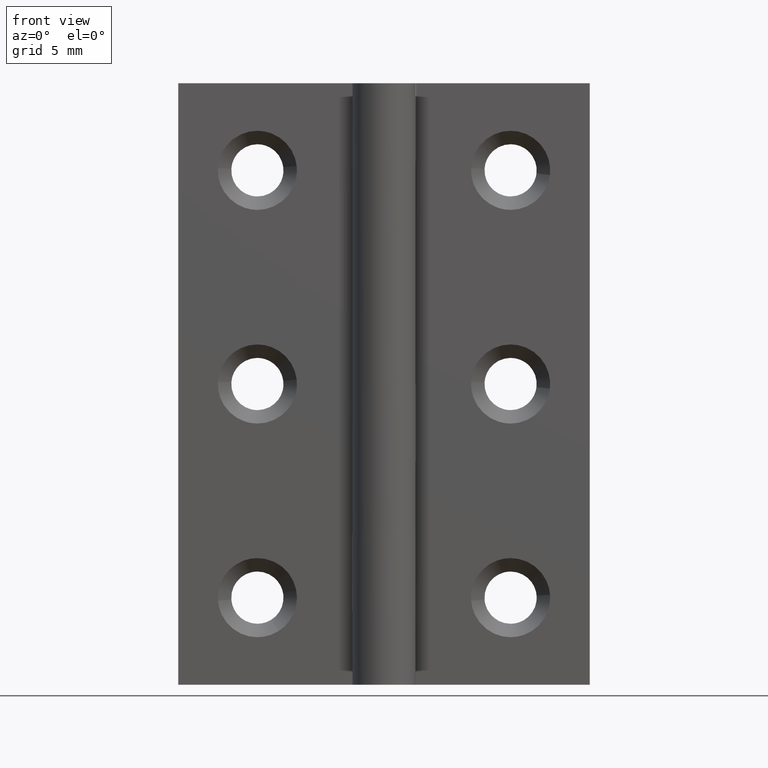
[diagram: clean part render]
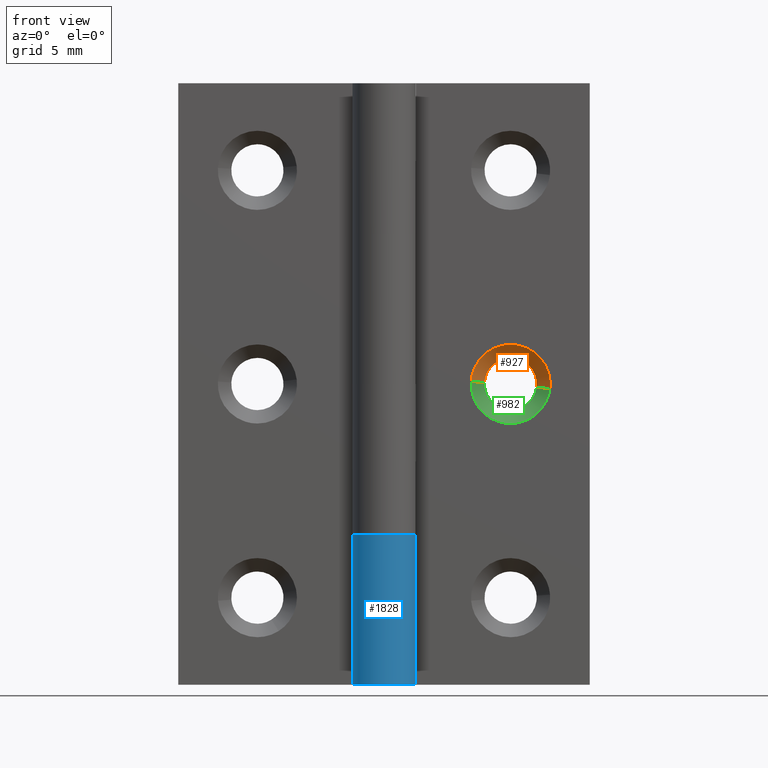
[diagram: same view with three faces highlighted in distinct colors, each labeled with its STEP entity id]
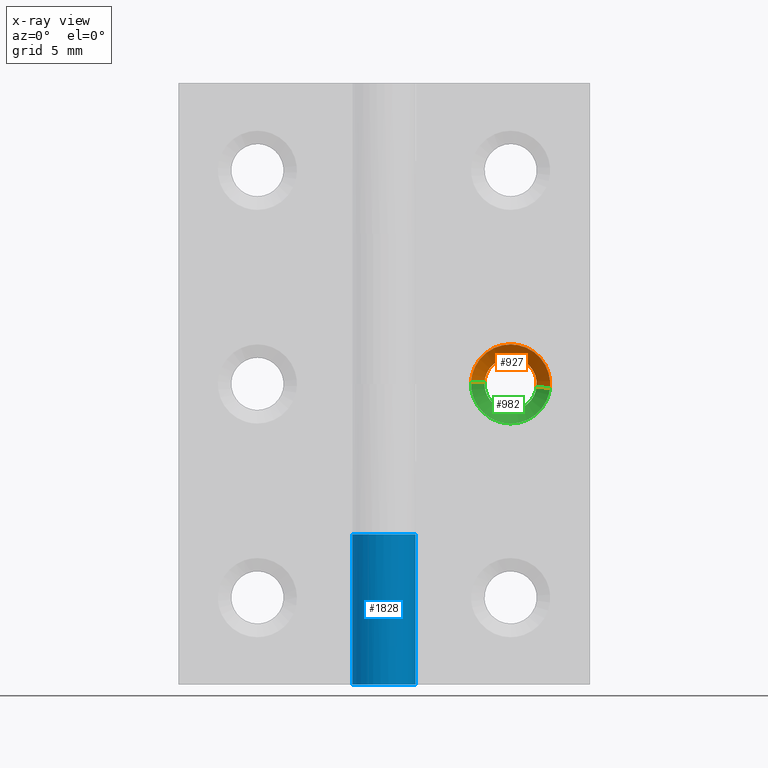
[diagram: x-ray of the same camera — body ghosted, the three highlighted faces saturated]
A machine part, front view with three faces highlighted in distinct colors.
The next image is the same camera in x-ray (body ghosted, the three faces saturated) — at least one of them is partly hidden behind the body in this view.
Their STEP definitions:

[orange] entity #927 — the highlighted face is a freeform B-spline surface patch.
#661=CARTESIAN_POINT('',(9.638465718502589,1.849999999959386,18.805243512493622));
#662=VERTEX_POINT('',#661);
#663=CARTESIAN_POINT('',(8.887453809190404,1.850000000000000,20.391016080623601));
#664=VERTEX_POINT('',#663);
#665=CARTESIAN_POINT('',(9.638465718502589,1.849999999959385,18.805243512493618));
#666=CARTESIAN_POINT('',(9.650000000000000,1.850000000000000,18.902280202253049));
#667=CARTESIAN_POINT('',(9.650000000000000,1.850000000000000,19.0));
#668=CARTESIAN_POINT('',(9.650000000000000,1.850000000000000,19.904519532417840));
#669=CARTESIAN_POINT('',(8.887453809190404,1.850000000000000,20.391016080623597));
#677=(BOUNDED_CURVE()B_SPLINE_CURVE(2,(#665,#666,#667,#668,#669),.UNSPECIFIED.,.F.,.U.)B_SPLINE_CURVE_WITH_KNOTS((3,2,3),(0.229562473450056,0.250000000000000,0.407950112626655),.UNSPECIFIED.)CURVE()GEOMETRIC_REPRESENTATION_ITEM()RATIONAL_B_SPLINE_CURVE((0.956026754059329,0.976055948256805,1.0,0.814949932403327,0.863729296954371))REPRESENTATION_ITEM(''));
#678=EDGE_CURVE('',#662,#664,#677,.T.);
#721=CARTESIAN_POINT('',(6.355086399340840,1.850000000000000,19.129457507957309));
#722=VERTEX_POINT('',#721);
#728=CARTESIAN_POINT('',(6.353077582582209,1.849999999959427,19.100730090542140));
#729=VERTEX_POINT('',#728);
#730=CARTESIAN_POINT('',(6.355086399340840,1.850000000000000,19.129457507957305));
#731=CARTESIAN_POINT('',(6.353956640808464,1.850000000000001,19.115102564743935));
#732=CARTESIAN_POINT('',(6.353077582582209,1.849999999959427,19.100730090542150));
#740=(BOUNDED_CURVE()B_SPLINE_CURVE(2,(#730,#731,#732),.UNSPECIFIED.,.F.,.U.)B_SPLINE_CURVE_WITH_KNOTS((3,3),(0.736331300631441,0.739332962177608),.UNSPECIFIED.)CURVE()GEOMETRIC_REPRESENTATION_ITEM()RATIONAL_B_SPLINE_CURVE((0.969723356169048,0.972855475496772,0.976072041535265))REPRESENTATION_ITEM(''));
#741=EDGE_CURVE('',#722,#729,#740,.T.);
#794=CARTESIAN_POINT('',(8.0,1.850000000000000,20.649999999999999));
#795=VERTEX_POINT('',#794);
#796=CARTESIAN_POINT('',(8.887453809190404,1.850000000000000,20.391016080623597));
#797=CARTESIAN_POINT('',(8.481516291381151,1.850000000000000,20.649999999999999));
#798=CARTESIAN_POINT('',(8.0,1.850000000000000,20.649999999999999));
#806=(BOUNDED_CURVE()B_SPLINE_CURVE(2,(#796,#797,#798),.UNSPECIFIED.,.F.,.U.)B_SPLINE_CURVE_WITH_KNOTS((3,3),(0.407950112626655,0.500000000000000),.UNSPECIFIED.)CURVE()GEOMETRIC_REPRESENTATION_ITEM()RATIONAL_B_SPLINE_CURVE((0.863729296954371,0.892156848783221,1.0))REPRESENTATION_ITEM(''));
#807=EDGE_CURVE('',#664,#795,#806,.T.);
#809=CARTESIAN_POINT('',(8.0,1.850000000000000,20.649999999999999));
#810=CARTESIAN_POINT('',(6.474755688775796,1.850000000000000,20.649999999999995));
#811=CARTESIAN_POINT('',(6.355086399340840,1.850000000000001,19.129457507957309));
#819=(BOUNDED_CURVE()B_SPLINE_CURVE(2,(#809,#810,#811),.UNSPECIFIED.,.F.,.U.)B_SPLINE_CURVE_WITH_KNOTS((3,3),(0.500000000000000,0.736331300631440),.UNSPECIFIED.)CURVE()GEOMETRIC_REPRESENTATION_ITEM()RATIONAL_B_SPLINE_CURVE((1.0,0.723120658606751,0.969723356169047))REPRESENTATION_ITEM(''));
#820=EDGE_CURVE('',#795,#722,#819,.T.);
#855=CARTESIAN_POINT('',(9.617364266064820,1.871250000000000,18.807751740302802));
#856=CARTESIAN_POINT('',(9.622866328661914,1.871250000000000,18.854040010730895));
#857=CARTESIAN_POINT('',(9.625712052929615,1.871250000000000,18.900567191232600));
#858=CARTESIAN_POINT('',(9.725144861697013,1.871250000000000,20.526279244162222));
#859=CARTESIAN_POINT('',(8.099432808767398,1.871250000000000,20.625712052929622));
#860=CARTESIAN_POINT('',(6.473720755837784,1.871250000000000,20.725144861697011));
#861=CARTESIAN_POINT('',(6.374287947070386,1.871250000000000,19.099432808767400));
#862=CARTESIAN_POINT('',(10.504152804655273,0.978218750000000,18.702343480184481));
#863=CARTESIAN_POINT('',(10.512671606370505,0.978218750000000,18.774011257596911));
#864=CARTESIAN_POINT('',(10.517077619632790,0.978218750000000,18.846048937661109));
#865=CARTESIAN_POINT('',(10.671028681971677,0.978218750000000,21.363126557293899));
#866=CARTESIAN_POINT('',(8.153951062338885,0.978218750000000,21.517077619632790));
#867=CARTESIAN_POINT('',(5.636873442706095,0.978218750000000,21.671028681971674));
#868=CARTESIAN_POINT('',(5.482922380367208,0.978218750000000,19.153951062338891));
#876=(BOUNDED_SURFACE()B_SPLINE_SURFACE(2,1,((#855,#862),(#856,#863),(#857,#864),(#858,#865),(#859,#866),(#860,#867),(#861,#868)),.UNSPECIFIED.,.F.,.F.,.U.)B_SPLINE_SURFACE_WITH_KNOTS((3,2,2,3),(2,2),(0.0,0.167128959214109,4.345352939566817,8.523576919919524),(0.0,1.0),.UNSPECIFIED.)GEOMETRIC_REPRESENTATION_ITEM()RATIONAL_B_SPLINE_SURFACE(((0.977505800795127,0.977505800795127),(0.988284271247462,0.988284271247462),(1.0,1.0),(0.707106781186548,0.707106781186548),(1.0,1.0),(0.707106781186548,0.707106781186548),(1.0,1.0)))REPRESENTATION_ITEM('')SURFACE());
#877=ORIENTED_EDGE('',*,*,#678,.F.);
#878=CARTESIAN_POINT('',(10.482523815910669,0.999999999978796,18.704914413191101));
#879=VERTEX_POINT('',#878);
#880=CARTESIAN_POINT('',(9.638465718502589,1.849999999959386,18.805243512493622));
#881=CARTESIAN_POINT('',(10.482523815910669,0.999999999978796,18.704914413191101));
#882=QUASI_UNIFORM_CURVE('',1,(#880,#881),.UNSPECIFIED.,.F.,.U.);
#883=EDGE_CURVE('',#662,#879,#882,.T.);
#884=ORIENTED_EDGE('',*,*,#883,.T.);
#885=CARTESIAN_POINT('',(8.0,1.0,21.500000000000000));
#886=VERTEX_POINT('',#885);
#887=CARTESIAN_POINT('',(10.482523815910671,0.999999999978796,18.704914413191098));
#888=CARTESIAN_POINT('',(10.500000000000002,1.0,18.851939700703987));
#889=CARTESIAN_POINT('',(10.500000000000000,1.0,19.0));
#890=CARTESIAN_POINT('',(10.500000000000002,1.0,21.499999999999996));
#891=CARTESIAN_POINT('',(8.0,1.0,21.500000000000000));
#899=(BOUNDED_CURVE()B_SPLINE_CURVE(2,(#887,#888,#889,#890,#891),.UNSPECIFIED.,.F.,.U.)B_SPLINE_CURVE_WITH_KNOTS((3,2,3),(0.229562473493247,0.250000000000000,0.500000000000000),.UNSPECIFIED.)CURVE()GEOMETRIC_REPRESENTATION_ITEM()RATIONAL_B_SPLINE_CURVE((0.956026754143986,0.976055948307407,1.0,0.707106781186548,1.0))REPRESENTATION_ITEM(''));
#900=EDGE_CURVE('',#879,#886,#899,.T.);
#901=ORIENTED_EDGE('',*,*,#900,.T.);
#902=CARTESIAN_POINT('',(5.504663003944892,0.999999999999174,19.152621348843471));
#903=VERTEX_POINT('',#902);
#904=CARTESIAN_POINT('',(8.0,1.0,21.500000000000000));
#905=CARTESIAN_POINT('',(5.648234832747604,1.0,21.500000000000004));
#906=CARTESIAN_POINT('',(5.504663003944892,0.999999999999174,19.152621348843468));
#914=(BOUNDED_CURVE()B_SPLINE_CURVE(2,(#904,#905,#906),.UNSPECIFIED.,.F.,.U.)B_SPLINE_CURVE_WITH_KNOTS((3,3),(0.500000000000000,0.739332962241101),.UNSPECIFIED.)CURVE()GEOMETRIC_REPRESENTATION_ITEM()RATIONAL_B_SPLINE_CURVE((1.0,0.719603993284182,0.976072041671343))REPRESENTATION_ITEM(''));
#915=EDGE_CURVE('',#886,#903,#914,.T.);
#916=ORIENTED_EDGE('',*,*,#915,.T.);
#917=CARTESIAN_POINT('',(6.353077582582209,1.849999999959427,19.100730090542140));
#918=CARTESIAN_POINT('',(5.504663003944892,0.999999999999174,19.152621348843471));
#919=QUASI_UNIFORM_CURVE('',1,(#917,#918),.UNSPECIFIED.,.F.,.U.);
#920=EDGE_CURVE('',#729,#903,#919,.T.);
#921=ORIENTED_EDGE('',*,*,#920,.F.);
#922=ORIENTED_EDGE('',*,*,#741,.F.);
#923=ORIENTED_EDGE('',*,*,#820,.F.);
#924=ORIENTED_EDGE('',*,*,#807,.F.);
#925=EDGE_LOOP('',(#877,#884,#901,#916,#921,#922,#923,#924));
#926=FACE_OUTER_BOUND('',#925,.T.);
#927=ADVANCED_FACE('',(#926),#876,.F.);

[blue] entity #1828 — the highlighted face is a freeform B-spline surface patch.
#1513=CARTESIAN_POINT('',(0.0,2.0,9.499999999999801));
#1514=VERTEX_POINT('',#1513);
#1520=CARTESIAN_POINT('',(1.759971590679805,0.950000000000000,9.499999999999840));
#1521=VERTEX_POINT('',#1520);
#1522=CARTESIAN_POINT('',(0.0,2.0,9.499999999999801));
#1523=CARTESIAN_POINT('',(-1.523311426391113,2.000000000000000,9.499999999999840));
#1524=CARTESIAN_POINT('',(-1.928096575312494,0.531454227820452,9.499999999999840));
#1525=CARTESIAN_POINT('',(-2.332881724233875,-0.937091544359096,9.499999999999840));
#1526=CARTESIAN_POINT('',(-1.024695076595960,-1.717556403731767,9.499999999999840));
#1527=CARTESIAN_POINT('',(0.283491571041954,-2.498021263104437,9.499999999999840));
#1528=CARTESIAN_POINT('',(1.383518044628768,-1.444256840103792,9.499999999999840));
#1529=CARTESIAN_POINT('',(2.483544518215583,-0.390492417103146,9.499999999999840));
#1530=CARTESIAN_POINT('',(1.759971590679805,0.949999999999999,9.499999999999840));
#1538=(BOUNDED_CURVE()B_SPLINE_CURVE(2,(#1522,#1523,#1524,#1525,#1526,#1527,#1528,#1529,#1530),.UNSPECIFIED.,.F.,.U.)B_SPLINE_CURVE_WITH_KNOTS((3,2,2,2,3),(0.0,0.250000000000000,0.500000000000000,0.750000000000000,1.0),.UNSPECIFIED.)CURVE()GEOMETRIC_REPRESENTATION_ITEM()RATIONAL_B_SPLINE_CURVE((1.0,0.795527219493534,1.0,0.795527219493534,1.0,0.795527219493534,1.0,0.795527219493534,1.0))REPRESENTATION_ITEM(''));
#1539=EDGE_CURVE('',#1514,#1521,#1538,.T.);
#1653=CARTESIAN_POINT('',(1.759971590679805,0.950000000000000,0.0));
#1654=VERTEX_POINT('',#1653);
#1660=CARTESIAN_POINT('',(0.0,2.0,0.0));
#1661=VERTEX_POINT('',#1660);
#1662=CARTESIAN_POINT('',(1.759971590679804,0.950000000000000,0.0));
#1663=CARTESIAN_POINT('',(2.483544518215584,-0.390492417103144,0.0));
#1664=CARTESIAN_POINT('',(1.383518044628769,-1.444256840103792,0.0));
#1665=CARTESIAN_POINT('',(0.283491571041955,-2.498021263104437,0.0));
#1666=CARTESIAN_POINT('',(-1.024695076595959,-1.717556403731767,0.0));
#1667=CARTESIAN_POINT('',(-2.332881724233873,-0.937091544359097,0.0));
#1668=CARTESIAN_POINT('',(-1.928096575312494,0.531454227820451,0.0));
#1669=CARTESIAN_POINT('',(-1.523311426391115,2.000000000000000,0.0));
#1670=CARTESIAN_POINT('',(0.0,2.0,0.0));
#1678=(BOUNDED_CURVE()B_SPLINE_CURVE(2,(#1662,#1663,#1664,#1665,#1666,#1667,#1668,#1669,#1670),.UNSPECIFIED.,.F.,.U.)B_SPLINE_CURVE_WITH_KNOTS((3,2,2,2,3),(0.0,0.250000000000000,0.500000000000000,0.750000000000000,1.0),.UNSPECIFIED.)CURVE()GEOMETRIC_REPRESENTATION_ITEM()RATIONAL_B_SPLINE_CURVE((1.0,0.795527219493534,1.0,0.795527219493534,1.0,0.795527219493534,1.0,0.795527219493534,1.0))REPRESENTATION_ITEM(''));
#1679=EDGE_CURVE('',#1654,#1661,#1678,.T.);
#1754=CARTESIAN_POINT('',(1.759971590679805,0.950000000000000,0.0));
#1755=CARTESIAN_POINT('',(1.759971590679805,0.950000000000000,9.499999999999840));
#1756=QUASI_UNIFORM_CURVE('',1,(#1754,#1755),.UNSPECIFIED.,.F.,.U.);
#1757=EDGE_CURVE('',#1654,#1521,#1756,.T.);
#1796=CARTESIAN_POINT('',(1.723258320883051,1.015076725921408,-0.237499999999996));
#1797=CARTESIAN_POINT('',(1.723258320883051,1.015076725921408,9.743437499999837));
#1798=CARTESIAN_POINT('',(2.969344769301742,-1.100358281051034,-0.237499999999997));
#1799=CARTESIAN_POINT('',(2.969344769301742,-1.100358281051034,9.743437499999837));
#1800=CARTESIAN_POINT('',(0.645632757753657,-1.892923226682848,-0.237499999999996));
#1801=CARTESIAN_POINT('',(0.645632757753657,-1.892923226682848,9.743437499999837));
#1802=CARTESIAN_POINT('',(-1.678079253794428,-2.685488172314661,-0.237499999999997));
#1803=CARTESIAN_POINT('',(-1.678079253794428,-2.685488172314661,9.743437499999837));
#1804=CARTESIAN_POINT('',(-1.984374898665018,-0.249512046899941,-0.237499999999996));
#1805=CARTESIAN_POINT('',(-1.984374898665018,-0.249512046899941,9.743437499999837));
#1806=CARTESIAN_POINT('',(-2.290670543535608,2.186464078514781,-0.237499999999997));
#1807=CARTESIAN_POINT('',(-2.290670543535608,2.186464078514781,9.743437499999837));
#1808=CARTESIAN_POINT('',(0.156918191455691,1.993834667466256,-0.237499999999996));
#1809=CARTESIAN_POINT('',(0.156918191455691,1.993834667466256,9.743437499999837));
#1817=(BOUNDED_SURFACE()B_SPLINE_SURFACE(1,2,((#1796,#1798,#1800,#1802,#1804,#1806,#1808),(#1797,#1799,#1801,#1803,#1805,#1807,#1809)),.UNSPECIFIED.,.F.,.F.,.U.)B_SPLINE_SURFACE_WITH_KNOTS((2,2),(3,2,2,3),(0.0,9.980937499999834),(0.0,3.801531476131832,7.603062952263665,11.404594428395500),.UNSPECIFIED.)GEOMETRIC_REPRESENTATION_ITEM()RATIONAL_B_SPLINE_SURFACE(((1.0,0.631578351302498,1.0,0.631578351302498,1.0,0.631578351302498,1.0),(1.0,0.631578351302498,1.0,0.631578351302498,1.0,0.631578351302498,1.0)))REPRESENTATION_ITEM('')SURFACE());
#1818=ORIENTED_EDGE('',*,*,#1539,.F.);
#1819=CARTESIAN_POINT('',(0.0,2.0,0.0));
#1820=CARTESIAN_POINT('',(0.0,2.0,9.499999999999801));
#1821=QUASI_UNIFORM_CURVE('',1,(#1819,#1820),.UNSPECIFIED.,.F.,.U.);
#1822=EDGE_CURVE('',#1661,#1514,#1821,.T.);
#1823=ORIENTED_EDGE('',*,*,#1822,.F.);
#1824=ORIENTED_EDGE('',*,*,#1679,.F.);
#1825=ORIENTED_EDGE('',*,*,#1757,.T.);
#1826=EDGE_LOOP('',(#1818,#1823,#1824,#1825));
#1827=FACE_OUTER_BOUND('',#1826,.T.);
#1828=ADVANCED_FACE('',(#1827),#1817,.T.);

[green] entity #982 — the highlighted face is a freeform B-spline surface patch.
#661=CARTESIAN_POINT('',(9.638465718502589,1.849999999959386,18.805243512493622));
#662=VERTEX_POINT('',#661);
#728=CARTESIAN_POINT('',(6.353077582582209,1.849999999959427,19.100730090542140));
#729=VERTEX_POINT('',#728);
#743=CARTESIAN_POINT('',(8.0,1.850000000000000,17.350000000000001));
#744=VERTEX_POINT('',#743);
#745=CARTESIAN_POINT('',(6.353077582582209,1.849999999959427,19.100730090542147));
#746=CARTESIAN_POINT('',(6.350000000000000,1.850000000000001,19.050412059750688));
#747=CARTESIAN_POINT('',(6.350000000000000,1.850000000000000,19.0));
#748=CARTESIAN_POINT('',(6.350000000000000,1.850000000000000,17.350000000000001));
#749=CARTESIAN_POINT('',(8.0,1.850000000000000,17.350000000000001));
#757=(BOUNDED_CURVE()B_SPLINE_CURVE(2,(#745,#746,#747,#748,#749),.UNSPECIFIED.,.F.,.U.)B_SPLINE_CURVE_WITH_KNOTS((3,2,3),(0.739332962177609,0.750000000000000,1.0),.UNSPECIFIED.)CURVE()GEOMETRIC_REPRESENTATION_ITEM()RATIONAL_B_SPLINE_CURVE((0.976072041535267,0.987502787827980,1.0,0.707106781186548,1.0))REPRESENTATION_ITEM(''));
#758=EDGE_CURVE('',#729,#744,#757,.T.);
#760=CARTESIAN_POINT('',(8.0,1.850000000000000,17.350000000000001));
#761=CARTESIAN_POINT('',(9.465487967247011,1.850000000000000,17.350000000000009));
#762=CARTESIAN_POINT('',(9.638465718502587,1.849999999959386,18.805243512493629));
#770=(BOUNDED_CURVE()B_SPLINE_CURVE(2,(#760,#761,#762),.UNSPECIFIED.,.F.,.U.)B_SPLINE_CURVE_WITH_KNOTS((3,3),(0.0,0.229562473450056),.UNSPECIFIED.)CURVE()GEOMETRIC_REPRESENTATION_ITEM()RATIONAL_B_SPLINE_CURVE((1.0,0.731050832929742,0.956026754059329))REPRESENTATION_ITEM(''));
#771=EDGE_CURVE('',#744,#662,#770,.T.);
#878=CARTESIAN_POINT('',(10.482523815910669,0.999999999978796,18.704914413191101));
#879=VERTEX_POINT('',#878);
#880=CARTESIAN_POINT('',(9.638465718502589,1.849999999959386,18.805243512493622));
#881=CARTESIAN_POINT('',(10.482523815910669,0.999999999978796,18.704914413191101));
#882=QUASI_UNIFORM_CURVE('',1,(#880,#881),.UNSPECIFIED.,.F.,.U.);
#883=EDGE_CURVE('',#662,#879,#882,.T.);
#902=CARTESIAN_POINT('',(5.504663003944892,0.999999999999174,19.152621348843471));
#903=VERTEX_POINT('',#902);
#917=CARTESIAN_POINT('',(6.353077582582209,1.849999999959427,19.100730090542140));
#918=CARTESIAN_POINT('',(5.504663003944892,0.999999999999174,19.152621348843471));
#919=QUASI_UNIFORM_CURVE('',1,(#917,#918),.UNSPECIFIED.,.F.,.U.);
#920=EDGE_CURVE('',#729,#903,#919,.T.);
#928=CARTESIAN_POINT('',(6.374287947070386,1.871250000000000,19.099432808767400));
#929=CARTESIAN_POINT('',(6.274855138302987,1.871250000000000,17.473720755837782));
#930=CARTESIAN_POINT('',(7.900567191232602,1.871250000000000,17.374287947070389));
#931=CARTESIAN_POINT('',(9.435813960704836,1.871250000000000,17.280388232071896));
#932=CARTESIAN_POINT('',(9.617364266064820,1.871250000000000,18.807751740302802));
#933=CARTESIAN_POINT('',(5.482922380367208,0.978218750000000,19.153951062338891));
#934=CARTESIAN_POINT('',(5.328971318028322,0.978218750000000,16.636873442706090));
#935=CARTESIAN_POINT('',(7.846048937661114,0.978218750000000,16.482922380367210));
#936=CARTESIAN_POINT('',(10.223059846258600,0.978218750000000,16.337538165071109));
#937=CARTESIAN_POINT('',(10.504152804655273,0.978218750000000,18.702343480184481));
#945=(BOUNDED_SURFACE()B_SPLINE_SURFACE(2,1,((#928,#933),(#929,#934),(#930,#935),(#931,#936),(#932,#937)),.UNSPECIFIED.,.F.,.F.,.U.)B_SPLINE_SURFACE_WITH_KNOTS((3,2,3),(2,2),(0.0,4.178223980352705,8.189319001491302),(0.0,1.0),.UNSPECIFIED.)GEOMETRIC_REPRESENTATION_ITEM()RATIONAL_B_SPLINE_SURFACE(((1.0,1.0),(0.707106781186548,0.707106781186548),(1.0,1.0),(0.718822509939086,0.718822509939086),(0.977505800795127,0.977505800795127)))REPRESENTATION_ITEM('')SURFACE());
#946=ORIENTED_EDGE('',*,*,#771,.F.);
#947=ORIENTED_EDGE('',*,*,#758,.F.);
#948=ORIENTED_EDGE('',*,*,#920,.T.);
#949=CARTESIAN_POINT('',(8.0,1.0,16.500000000000000));
#950=VERTEX_POINT('',#949);
#951=CARTESIAN_POINT('',(5.504663003944891,0.999999999999174,19.152621348843464));
#952=CARTESIAN_POINT('',(5.500000000000000,1.0,19.076381908252770));
#953=CARTESIAN_POINT('',(5.500000000000000,1.0,19.0));
#954=CARTESIAN_POINT('',(5.500000000000001,1.0,16.499999999999993));
#955=CARTESIAN_POINT('',(8.0,1.0,16.500000000000000));
#963=(BOUNDED_CURVE()B_SPLINE_CURVE(2,(#951,#952,#953,#954,#955),.UNSPECIFIED.,.F.,.U.)B_SPLINE_CURVE_WITH_KNOTS((3,2,3),(0.739332962241100,0.750000000000000,1.0),.UNSPECIFIED.)CURVE()GEOMETRIC_REPRESENTATION_ITEM()RATIONAL_B_SPLINE_CURVE((0.976072041671341,0.987502787902365,1.0,0.707106781186548,1.0))REPRESENTATION_ITEM(''));
#964=EDGE_CURVE('',#903,#950,#963,.T.);
#965=ORIENTED_EDGE('',*,*,#964,.T.);
#966=CARTESIAN_POINT('',(8.0,1.0,16.500000000000000));
#967=CARTESIAN_POINT('',(10.220436314582084,1.0,16.500000000000000));
#968=CARTESIAN_POINT('',(10.482523815910668,0.999999999978796,18.704914413191105));
#976=(BOUNDED_CURVE()B_SPLINE_CURVE(2,(#966,#967,#968),.UNSPECIFIED.,.F.,.U.)B_SPLINE_CURVE_WITH_KNOTS((3,3),(0.0,0.229562473493247),.UNSPECIFIED.)CURVE()GEOMETRIC_REPRESENTATION_ITEM()RATIONAL_B_SPLINE_CURVE((1.0,0.731050832879140,0.956026754143986))REPRESENTATION_ITEM(''));
#977=EDGE_CURVE('',#950,#879,#976,.T.);
#978=ORIENTED_EDGE('',*,*,#977,.T.);
#979=ORIENTED_EDGE('',*,*,#883,.F.);
#980=EDGE_LOOP('',(#946,#947,#948,#965,#978,#979));
#981=FACE_OUTER_BOUND('',#980,.T.);
#982=ADVANCED_FACE('',(#981),#945,.F.);